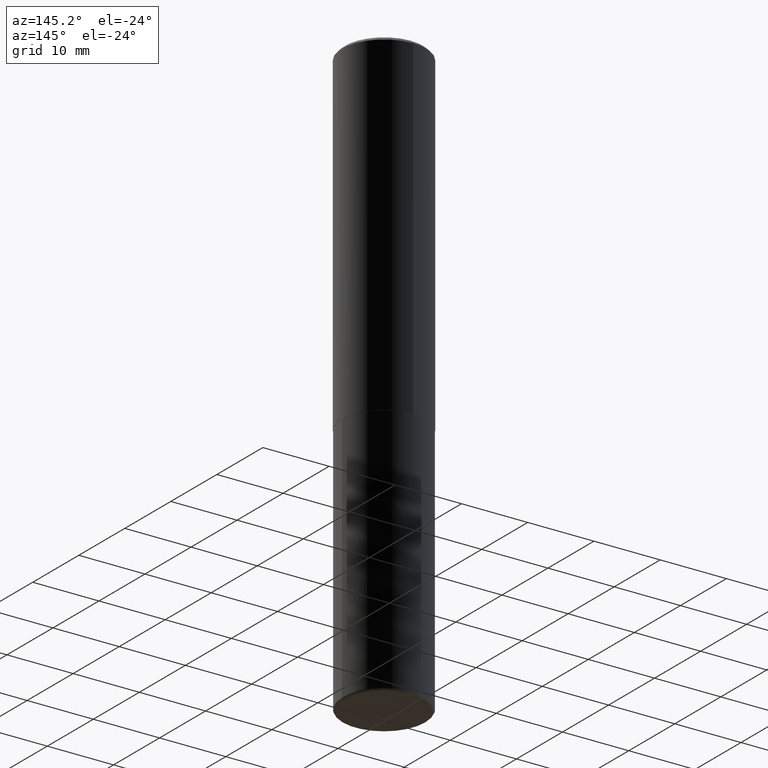
[diagram: clean part render]
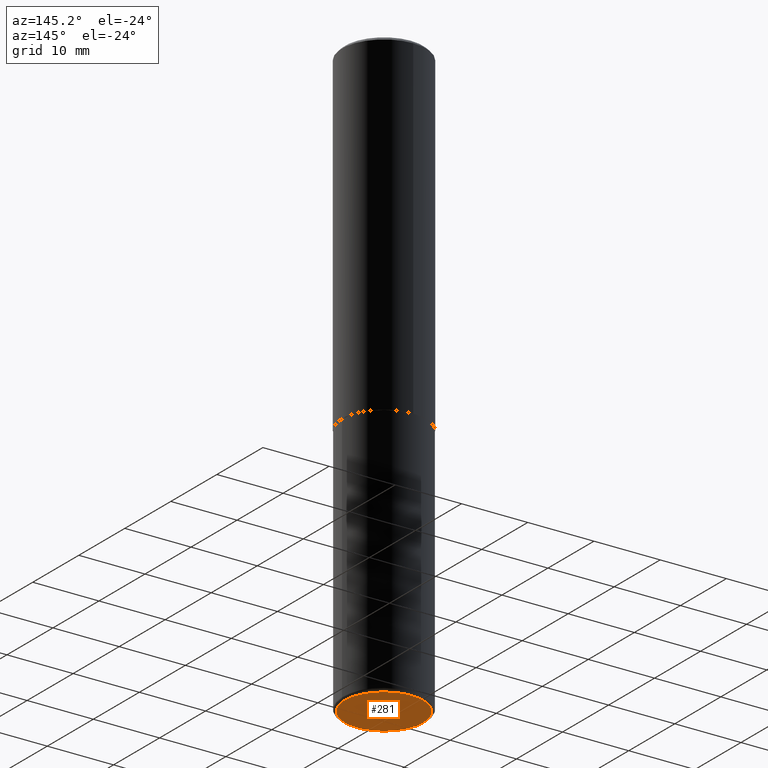
[diagram: same view with one face highlighted and labeled with its STEP entity id]
A machine part, auxiliary view. The second image highlights one B-rep face of the part: STEP entity #281.
In plain terms, the highlighted planar face has unit normal (0, -0, -1).
Its self-contained STEP definition (entity closure, byte-faithful):
#12 = CARTESIAN_POINT ( 'NONE',  ( 8.559140821647976968E-29, -1.222018468595100619E-14, -3.499999999999999112 ) ) ;
#38 = CARTESIAN_POINT ( 'NONE',  ( 8.559140821647976968E-29, -1.222018468595100619E-14, -3.499999999999999112 ) ) ;
#59 = VERTEX_POINT ( 'NONE', #336 ) ;
#70 = CIRCLE ( 'NONE', #265, 0.2349999999999999867 ) ;
#75 = DIRECTION ( 'NONE',  ( 1.000000000000000000, -6.982962677686271444E-15, 0.000000000000000000 ) ) ;
#85 = ORIENTED_EDGE ( 'NONE', *, *, #327, .F. ) ;
#87 = EDGE_LOOP ( 'NONE', ( #410, #85 ) ) ;
#92 = EDGE_CURVE ( 'NONE', #59, #118, #108, .T. ) ;
#105 = PLANE ( 'NONE',  #110 ) ;
#108 = CIRCLE ( 'NONE', #212, 0.2349999999999999867 ) ;
#110 = AXIS2_PLACEMENT_3D ( 'NONE', #189, #280, #248 ) ;
#118 = VERTEX_POINT ( 'NONE', #318 ) ;
#161 = FACE_OUTER_BOUND ( 'NONE', #87, .T. ) ;
#170 = DIRECTION ( 'NONE',  ( -2.445468806185136597E-29, 3.491481338843145583E-15, 1.000000000000000000 ) ) ;
#189 = CARTESIAN_POINT ( 'NONE',  ( 1.424147052658787775E-28, -4.082765130355326584E-15, -3.499999999999999112 ) ) ;
#212 = AXIS2_PLACEMENT_3D ( 'NONE', #38, #241, #383 ) ;
#241 = DIRECTION ( 'NONE',  ( -2.445468806185136597E-29, 3.491481338843145583E-15, 1.000000000000000000 ) ) ;
#248 = DIRECTION ( 'NONE',  ( -1.000000000000000000, 6.982962677686265922E-15, -4.876176775795935793E-29 ) ) ;
#265 = AXIS2_PLACEMENT_3D ( 'NONE', #12, #170, #75 ) ;
#280 = DIRECTION ( 'NONE',  ( 2.438088387897960049E-29, -3.491481338843145188E-15, -1.000000000000000000 ) ) ;
#281 = ADVANCED_FACE ( 'NONE', ( #161 ), #105, .T. ) ;
#318 = CARTESIAN_POINT ( 'NONE',  ( -0.2349999999999999867, -1.047093244169144191E-14, -3.499999999999999112 ) ) ;
#327 = EDGE_CURVE ( 'NONE', #118, #59, #70, .T. ) ;
#336 = CARTESIAN_POINT ( 'NONE',  ( 0.2349999999999999867, -1.386118091520728107E-14, -3.499999999999999112 ) ) ;
#383 = DIRECTION ( 'NONE',  ( 1.000000000000000000, -6.982962677686271444E-15, 0.000000000000000000 ) ) ;
#410 = ORIENTED_EDGE ( 'NONE', *, *, #92, .F. ) ;